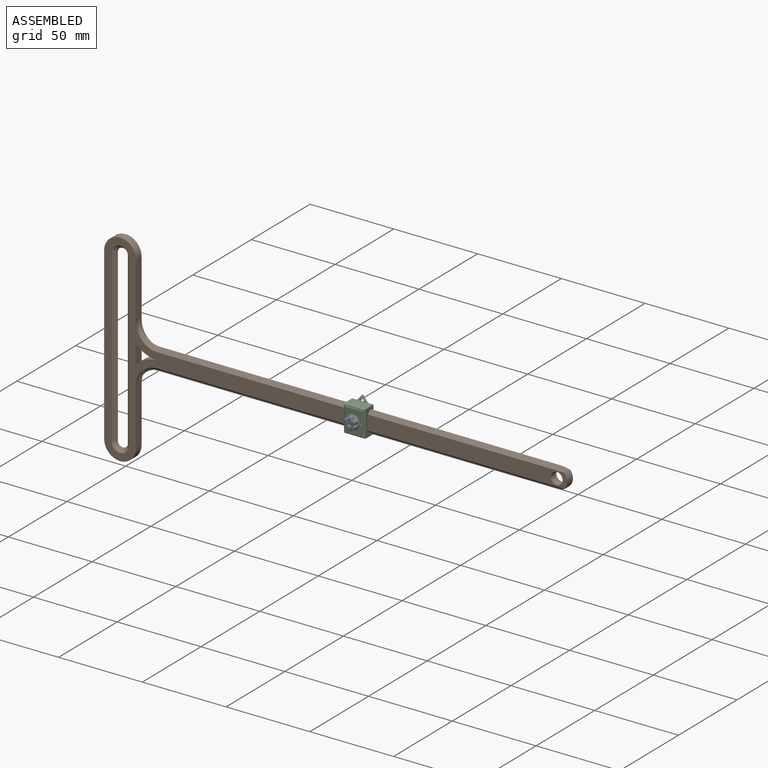
[diagram: assembled view]
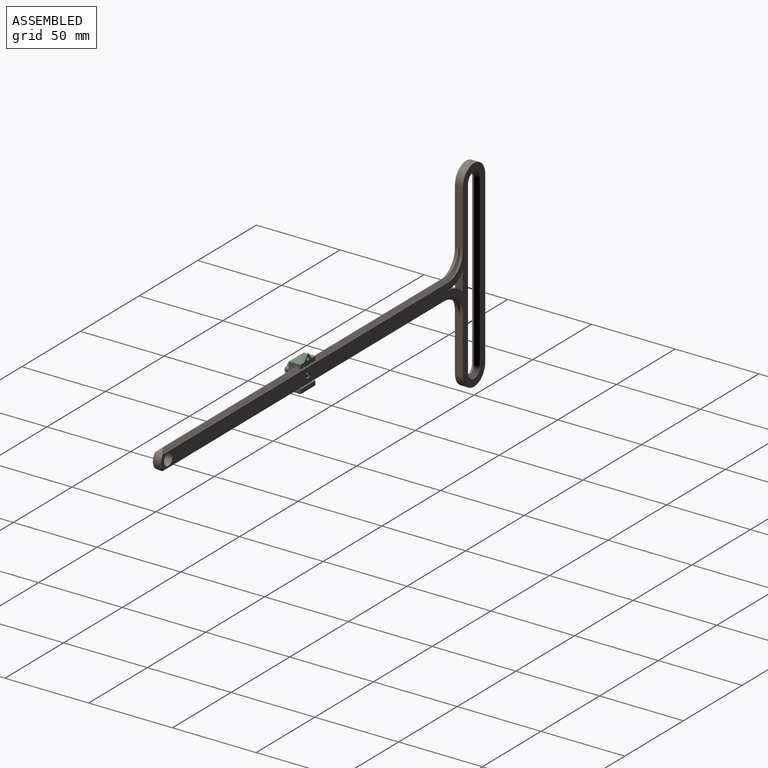
[diagram: assembled view, second angle]
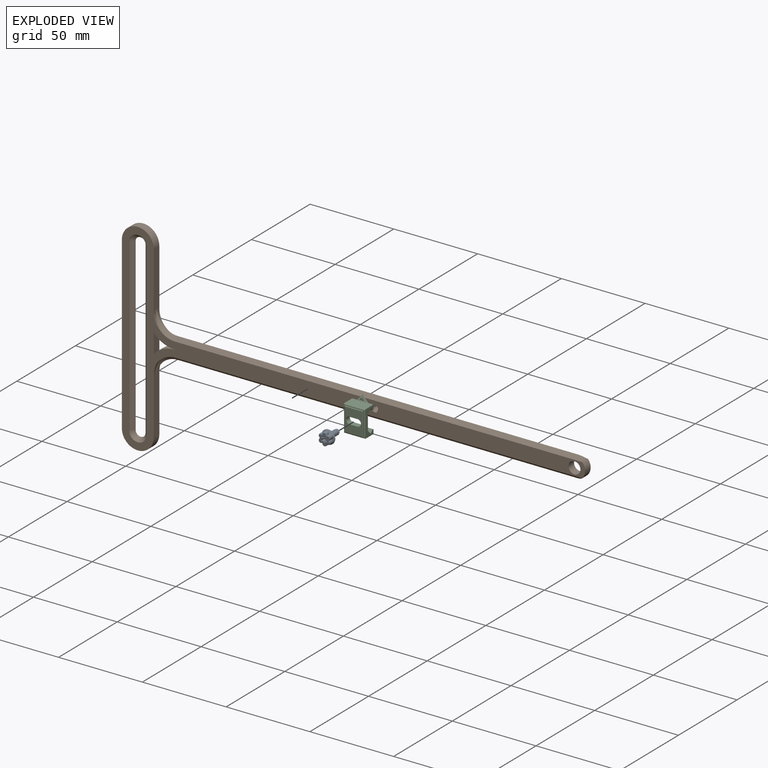
[diagram: exploded view]
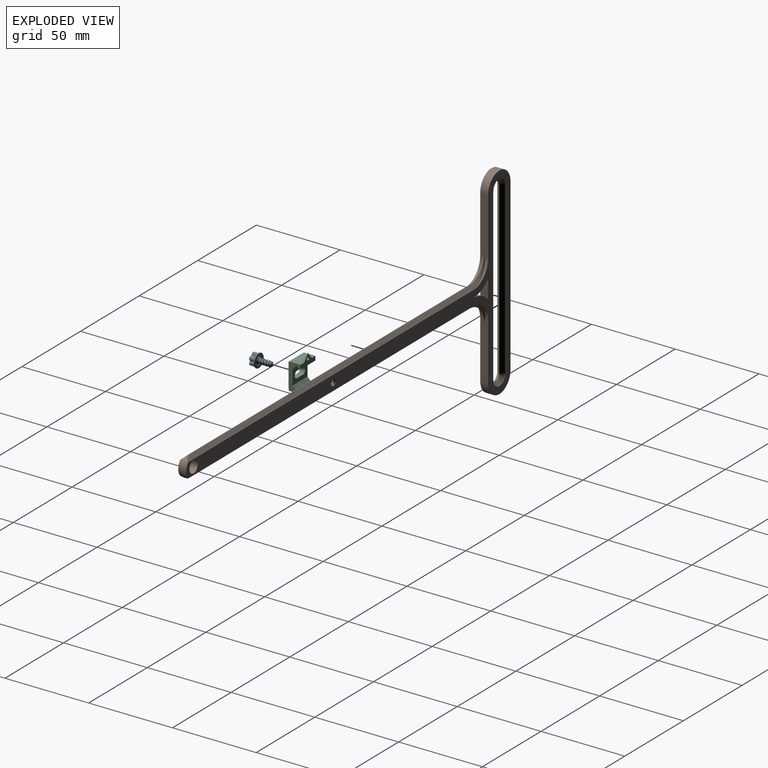
[diagram: exploded view, second angle]
ASSEMBLY  parts=3 mates=2
PART A: 109 faces, bbox 8.4x12.1x8.4 mm
  f0: bspline ~5.09x2.55mm, area 4.1mm2, adj f1,f2,f3,f4
  f1: plane 7.82x7.81mm, normal (0,-1,0), area 25.2mm2, adj f0,f2,f5,f6
  f2: bspline ~5.09x2.55mm, area 4.1mm2, adj f0,f1,f3,f4
  f3: bspline ~4.73x4.29mm, area 5.4mm2, adj f0,f2,f4,f7
  f4: bspline ~4.74x4.29mm, area 6.2mm2, adj f0,f2,f3,f7,f8,f9,f10,f11
  f5: bspline ~8.13x4.06mm, area 4.4mm2, adj f1,f6,f12
  f6: bspline ~8.13x4.06mm, area 4.4mm2, adj f1,f5,f13
  f7: bspline ~8.24x3.79mm, area 25.5mm2, adj f3,f4,f8,f10,f11,f14,f15,f16
  f8: cylinder r=1.71mm len=3.42mm, axis (0,-1,0), area 0.3mm2, adj f4,f7,f9,f20
  f9: bspline ~7.36x3.42mm, area 25.6mm2, adj f4,f8,f10,f14,f15,f16,f17,f18
  f10: cylinder r=1.27mm len=2.54mm, axis (0,-1,0), area 2.6mm2, adj f4,f7,f9,f11,f21
  f11: cylinder r=1.27mm len=2.29mm, axis (0,-1,0), area 1mm2, adj f4,f7,f10
  f12: cylinder r=4.06mm len=8.13mm, axis (0,1,0), area 3.2mm2, adj f5,f13,f32
  f13: cylinder r=4.06mm len=8.13mm, axis (0,1,0), area 3.2mm2, adj f6,f12,f33
  f14: cylinder r=1.71mm len=3.42mm, axis (0,-1,0), area 0.3mm2, adj f7,f9,f15,f30
  f15: cylinder r=1.71mm len=3.42mm, axis (0,-1,0), area 0.3mm2, adj f7,f9,f14,f16
  f16: cylinder r=1.71mm len=3.42mm, axis (0,-1,0), area 0.3mm2, adj f7,f9,f15,f17
  f17: cylinder r=1.71mm len=3.42mm, axis (0,-1,0), area 0.3mm2, adj f7,f9,f16,f18
  f18: cylinder r=1.71mm len=3.42mm, axis (0,-1,0), area 0.3mm2, adj f7,f9,f17,f19
  f19: cylinder r=1.71mm len=3.42mm, axis (0,-1,0), area 0.3mm2, adj f7,f9,f18,f20
  f20: cylinder r=1.71mm len=3.42mm, axis (0,-1,0), area 0.3mm2, adj f7,f8,f9,f19
  f21: cylinder r=1.27mm len=2.54mm, axis (0,-1,0), area 2.6mm2, adj f7,f9,f10,f22
  f22: cylinder r=1.27mm len=2.54mm, axis (0,-1,0), area 2.6mm2, adj f7,f9,f21,f23
  f23: cylinder r=1.27mm len=2.54mm, axis (0,-1,0), area 2.6mm2, adj f7,f9,f22,f24
  f24: cylinder r=1.27mm len=2.54mm, axis (0,-1,0), area 2.6mm2, adj f7,f9,f23,f25
  f25: cylinder r=1.27mm len=2.54mm, axis (0,-1,0), area 2.6mm2, adj f7,f9,f24,f26
  f26: cylinder r=1.27mm len=2.54mm, axis (0,-1,0), area 2.6mm2, adj f7,f9,f25,f27
  f27: cylinder r=1.27mm len=2.54mm, axis (0,-1,0), area 2.6mm2, adj f7,f9,f26,f29,f31
  f28: bspline ~3.63x2.41mm, area 3.6mm2, adj f7,f29,f34
  f29: bspline ~3.74x2.49mm, area 2.9mm2, adj f7,f9,f27,f28,f30,f31,f34
  f30: cylinder r=1.71mm len=3.14mm, axis (0,-1,0), area 0.3mm2, adj f7,f9,f14,f29
  f31: cylinder r=1.27mm len=2.12mm, axis (0,-1,0), area 0.9mm2, adj f9,f27,f29
  f32: bspline ~8.13x4.06mm, area 10mm2, adj f12,f33,f35,f36,f37,f38,f39,f40
  f33: bspline ~8.13x4.06mm, area 10mm2, adj f13,f32,f35,f41,f42,f43,f44,f45
  f34: plane 1.52x1.52mm, normal (0,-1,0), area 1.7mm2, adj f28,f29
  f35: cylinder r=0.19mm len=1.71mm, axis (0,1,0), area 0.6mm2, adj f32,f33,f36,f46,f47
  f36: cylinder r=1.31mm len=2.63mm, axis (0,1,0), area 9.2mm2, adj f32,f35,f37,f48
  f37: cylinder r=0.19mm len=1.71mm, axis (0,1,0), area 0.6mm2, adj f32,f36,f38,f49
  f38: cylinder r=1.31mm len=2.63mm, axis (0,1,0), area 9.2mm2, adj f32,f37,f39,f50
  f39: cylinder r=0.19mm len=1.71mm, axis (0,1,0), area 0.6mm2, adj f32,f38,f40,f51
  f40: cylinder r=1.31mm len=2.63mm, axis (0,1,0), area 9.2mm2, adj f32,f39,f41,f52
  f41: cylinder r=0.19mm len=1.71mm, axis (0,1,0), area 0.6mm2, adj f32,f33,f40,f42,f53
  f42: cylinder r=1.31mm len=2.63mm, axis (0,1,0), area 9.2mm2, adj f33,f41,f43,f54
  f43: cylinder r=0.19mm len=1.71mm, axis (0,1,0), area 0.6mm2, adj f33,f42,f44,f55
  f44: cylinder r=1.31mm len=2.63mm, axis (0,1,0), area 9.2mm2, adj f33,f43,f45,f56
  f45: cylinder r=0.19mm len=1.71mm, axis (0,1,0), area 0.6mm2, adj f33,f44,f46,f57
  f46: cylinder r=1.31mm len=2.63mm, axis (0,1,0), area 9.2mm2, adj f33,f35,f45,f58
  f47: bspline ~1.17x0.59mm, area 0.6mm2, adj f35,f48,f58,f59
  f48: bspline ~2.82x2.34mm, area 2.7mm2, adj f36,f47,f49,f59
  f49: bspline ~1.01x0.78mm, area 0.6mm2, adj f37,f48,f50,f59
  f50: bspline ~2.61x1.26mm, area 2.7mm2, adj f38,f49,f51,f59
  f51: bspline ~1.01x0.78mm, area 0.6mm2, adj f39,f50,f52,f59
  f52: bspline ~2.82x2.34mm, area 2.7mm2, adj f40,f51,f53,f59
  f53: bspline ~1.17x0.59mm, area 0.6mm2, adj f41,f52,f54,f59
  f54: bspline ~2.82x2.34mm, area 2.7mm2, adj f42,f53,f55,f59
  f55: bspline ~1.01x0.78mm, area 0.6mm2, adj f43,f54,f56,f59
  f56: bspline ~2.61x1.26mm, area 2.7mm2, adj f44,f55,f57,f59
  f57: bspline ~1.01x0.78mm, area 0.6mm2, adj f45,f56,f58,f59
  f58: bspline ~2.82x2.34mm, area 2.7mm2, adj f46,f47,f57,f59
  f59: plane 6.65x5.98mm, normal (0,1,0), area 17.7mm2, adj f47,f48,f49,f50,f51,f52,f53,f54
  f60: plane 1.5x0.56mm, normal (0.87,0,-0.5), area 1mm2, adj f59,f61,f83,f84
  f61: cylinder r=0.25mm len=1.5mm, axis (0,-1,0), area 0.4mm2, adj f59,f60,f62,f85
  f62: plane 1.5x0.65mm, normal (0,0,-1), area 1mm2, adj f59,f61,f63,f86
  f63: cylinder r=0.25mm len=1.5mm, axis (0,-1,0), area 0.8mm2, adj f59,f62,f64,f87
  f64: plane 1.5x0.56mm, normal (0.87,0,0.5), area 1mm2, adj f59,f63,f65,f88
  f65: cylinder r=0.25mm len=1.5mm, axis (0,-1,0), area 0.4mm2, adj f59,f64,f66,f89
  f66: plane 1.5x0.56mm, normal (0.87,0,-0.5), area 1mm2, adj f59,f65,f67,f90
  f67: cylinder r=0.25mm len=1.5mm, axis (0,-1,0), area 0.8mm2, adj f59,f66,f68,f91
  f68: plane 1.5x0.65mm, normal (0,0,1), area 1mm2, adj f59,f67,f69,f92
  f69: cylinder r=0.25mm len=1.5mm, axis (0,-1,0), area 0.4mm2, adj f59,f68,f70,f93
  f70: plane 1.5x0.56mm, normal (0.87,0,0.5), area 1mm2, adj f59,f69,f71,f94
  f71: cylinder r=0.25mm len=1.5mm, axis (0,-1,0), area 0.8mm2, adj f59,f70,f72,f95
  f72: plane 1.5x0.56mm, normal (-0.87,0,0.5), area 1mm2, adj f59,f71,f73,f96
  f73: cylinder r=0.25mm len=1.5mm, axis (0,-1,0), area 0.4mm2, adj f59,f72,f74,f97
  f74: plane 1.5x0.65mm, normal (0,0,1), area 1mm2, adj f59,f73,f75,f98
  f75: cylinder r=0.25mm len=1.5mm, axis (0,-1,0), area 0.8mm2, adj f59,f74,f76,f99
  f76: plane 1.5x0.56mm, normal (-0.87,0,-0.5), area 1mm2, adj f59,f75,f77,f100
  f77: cylinder r=0.25mm len=1.5mm, axis (0,-1,0), area 0.4mm2, adj f59,f76,f78,f101
  f78: plane 1.5x0.56mm, normal (-0.87,0,0.5), area 1mm2, adj f59,f77,f79,f102
  f79: cylinder r=0.25mm len=1.5mm, axis (0,-1,0), area 0.8mm2, adj f59,f78,f80,f103
  f80: plane 1.5x0.65mm, normal (0,0,-1), area 1mm2, adj f59,f79,f81,f104
  f81: cylinder r=0.25mm len=1.5mm, axis (0,-1,0), area 0.4mm2, adj f59,f80,f82,f105
  f82: plane 1.5x0.56mm, normal (-0.87,0,-0.5), area 1mm2, adj f59,f81,f83,f106
  f83: cylinder r=0.25mm len=1.5mm, axis (0,-1,0), area 0.8mm2, adj f59,f60,f82,f107
  f84: plane 0.69x0.54mm, normal (0.61,0.71,-0.35), area 0.2mm2, adj f60,f85,f107,f108
  f85: bspline ~0.44x0.38mm, area 0.1mm2, adj f61,f84,f86,f108
  f86: plane 0.9x0.51mm, normal (0,0.71,-0.71), area 0.2mm2, adj f62,f85,f87,f108
  f87: bspline ~0.38x0.29mm, area 0.1mm2, adj f63,f86,f88
  f88: plane 0.69x0.54mm, normal (0.61,0.71,0.35), area 0.2mm2, adj f64,f87,f89,f108
  f89: bspline ~0.51x0.37mm, area 0.1mm2, adj f65,f88,f90,f108
  f90: plane 0.94x0.8mm, normal (0.61,0.71,-0.35), area 0.2mm2, adj f66,f89,f91,f108
  f91: bspline ~0.38x0.29mm, area 0.1mm2, adj f67,f90,f92
  f92: plane 0.65x0.25mm, normal (0,0.71,0.71), area 0.2mm2, adj f68,f91,f93,f108
  f93: bspline ~0.44x0.38mm, area 0.1mm2, adj f69,f92,f94,f108
  f94: plane 0.94x0.8mm, normal (0.61,0.71,0.35), area 0.2mm2, adj f70,f93,f95,f108
  f95: bspline ~0.44x0.25mm, area 0.1mm2, adj f71,f94,f96
  f96: plane 0.69x0.54mm, normal (-0.61,0.71,0.35), area 0.2mm2, adj f72,f95,f97,f108
  f97: bspline ~0.44x0.38mm, area 0.1mm2, adj f73,f96,f98,f108
  f98: plane 0.9x0.51mm, normal (0,0.71,0.71), area 0.2mm2, adj f74,f97,f99,f108
  f99: bspline ~0.38x0.29mm, area 0.1mm2, adj f75,f98,f100
  f100: plane 0.69x0.54mm, normal (-0.61,0.71,-0.35), area 0.2mm2, adj f76,f99,f101,f108
  f101: bspline ~0.51x0.37mm, area 0.1mm2, adj f77,f100,f102,f108
  f102: plane 0.94x0.8mm, normal (-0.61,0.71,0.35), area 0.2mm2, adj f78,f101,f103,f108
  f103: bspline ~0.38x0.29mm, area 0.1mm2, adj f79,f102,f104
  f104: plane 0.65x0.25mm, normal (0,0.71,-0.71), area 0.2mm2, adj f80,f103,f105,f108
  f105: bspline ~0.44x0.38mm, area 0.1mm2, adj f81,f104,f106,f108
  f106: plane 0.94x0.8mm, normal (-0.61,0.71,-0.35), area 0.2mm2, adj f82,f105,f107,f108
  f107: bspline ~0.44x0.25mm, area 0.1mm2, adj f83,f84,f106
  f108: plane 3.26x2.82mm, normal (0,1,0), area 4.7mm2, adj f84,f85,f86,f88,f89,f90,f92,f93
PART B: 73 faces, bbox 276.7x5.5x120.9 mm
  f0: cylinder r=1.4mm len=2.79mm, axis (0,-1,0), area 0.8mm2, adj f1,f2,f3,f4
  f1: cylinder r=1.4mm len=2.79mm, axis (0,-1,0), area 0.8mm2, adj f0,f2,f4,f5
  f2: bspline ~4.97x4mm, area 16.4mm2, adj f0,f1,f3,f5,f6,f7,f8,f9
  f3: cylinder r=1.4mm len=1.34mm, axis (0,-1,0), area 0.2mm2, adj f0,f2,f4,f6
  f4: bspline ~4.97x4.01mm, area 16.4mm2, adj f0,f1,f3,f5,f6,f7,f8,f9
  f5: cylinder r=1.4mm len=2.79mm, axis (0,-1,0), area 0.8mm2, adj f1,f2,f4,f7
  f6: bspline ~3.6x3.01mm, area 3.4mm2, adj f2,f3,f4,f18,f20
  f7: cylinder r=1.4mm len=2.79mm, axis (0,-1,0), area 0.8mm2, adj f2,f4,f5,f8
  f8: cylinder r=1.4mm len=1.34mm, axis (0,-1,0), area 0.2mm2, adj f2,f4,f7,f9
  f9: bspline ~4.35x3.78mm, area 3.4mm2, adj f2,f4,f8,f10,f21
  f10: bspline ~4.35x3.77mm, area 1.2mm2, adj f2,f9,f11,f19,f21
  f11: cylinder r=1.84mm len=3.67mm, axis (0,-1,0), area 2.5mm2, adj f2,f4,f10,f12,f19
  f12: cylinder r=1.84mm len=3.67mm, axis (0,-1,0), area 3mm2, adj f2,f4,f11,f13
  f13: cylinder r=1.84mm len=3.67mm, axis (0,-1,0), area 3.1mm2, adj f2,f4,f12,f14
  f14: cylinder r=1.84mm len=3.67mm, axis (0,-1,0), area 3.1mm2, adj f2,f4,f13,f15
  f15: cylinder r=1.84mm len=3.67mm, axis (0,-1,0), area 3.1mm2, adj f2,f4,f14,f16
  f16: cylinder r=1.84mm len=3.67mm, axis (0,-1,0), area 2.5mm2, adj f2,f4,f15,f17,f18
  f17: cylinder r=1.84mm len=0.99mm, axis (0,-1,0), area 0.1mm2, adj f2,f16,f18
  f18: bspline ~4.35x3.77mm, area 1.2mm2, adj f4,f6,f16,f17,f20
  f19: cylinder r=1.84mm len=1mm, axis (0,-1,0), area 0.1mm2, adj f4,f10,f11
  f20: plane 276.65x120.83mm, normal (0,-1,0), area 3297.8mm2, adj f6,f18,f22,f23,f24,f25,f26,f27
  f21: plane 276.65x120.83mm, normal (0,1,0), area 3297.8mm2, adj f9,f10,f23,f26,f27,f28,f29,f30
  f22: plane 243.07x0.25mm, normal (0,0,-1), area 61.7mm2, adj f20,f23,f31,f49
  f23: cylinder r=6.35mm len=12.7mm, axis (0,-1,0), area 62.4mm2, adj f20,f21,f22,f24,f41,f42,f49,f50
  f24: plane 243.07x0.25mm, normal (0,0,1), area 61.7mm2, adj f20,f23,f25,f53
  f25: cylinder r=12.7mm len=12.7mm, axis (0,-1,0), area 18.1mm2, adj f20,f24,f26,f55
  f26: plane 33.87x4.88mm, normal (1,0,0), area 160mm2, adj f20,f21,f25,f27,f44,f55,f56,f57
  f27: cylinder r=9.53mm len=19.05mm, axis (0,-1,0), area 142.5mm2, adj f20,f21,f26,f28
  f28: plane 101.6x4.76mm, normal (-1,0,0), area 483.9mm2, adj f20,f21,f27,f29
  f29: cylinder r=9.53mm len=19.05mm, axis (0,-1,0), area 142.5mm2, adj f20,f21,f28,f30
  f30: plane 33.87x4.88mm, normal (1,0,0), area 160mm2, adj f20,f21,f29,f31,f43,f58,f59,f60
  f31: cylinder r=12.7mm len=12.7mm, axis (0,-1,0), area 18.1mm2, adj f20,f22,f30,f60
  f32: cylinder r=5.16mm len=10.31mm, axis (0,1,0), area 2.9mm2, adj f20,f33,f35,f61
  f33: plane 101.6x0.18mm, normal (1,0,0), area 18.1mm2, adj f20,f32,f34,f62
  f34: cylinder r=5.16mm len=10.31mm, axis (0,1,0), area 2.9mm2, adj f20,f33,f35,f63
  f35: plane 101.6x0.18mm, normal (-1,0,0), area 18.1mm2, adj f20,f32,f34,f64
  f36: cylinder r=17.05mm len=12.7mm, axis (0,-1,0), area 68.2mm2, adj f20,f21,f37,f38
  f37: cylinder r=17.05mm len=12.7mm, axis (0,-1,0), area 68.2mm2, adj f20,f21,f36,f38
  f38: plane 11.35x4.76mm, normal (1,0,0), area 54mm2, adj f20,f21,f36,f37
  f39: cylinder r=3.56mm len=7.11mm, axis (0,-1,0), area 53.2mm2, adj f20,f21,f40
  f40: cylinder r=3.56mm len=7.11mm, axis (0,-1,0), area 53.2mm2, adj f20,f21,f39
  f41: plane 243.07x0.25mm, normal (0,0,1), area 61.7mm2, adj f21,f23,f44,f51
  f42: plane 243.07x0.25mm, normal (0,0,-1), area 61.7mm2, adj f21,f23,f43,f50
  f43: cylinder r=12.7mm len=12.7mm, axis (0,-1,0), area 18.1mm2, adj f21,f30,f42,f58
  f44: cylinder r=12.7mm len=12.7mm, axis (0,-1,0), area 18.1mm2, adj f21,f26,f41,f57
  f45: plane 101.6x0.18mm, normal (1,0,0), area 18.1mm2, adj f21,f46,f48,f65
  f46: cylinder r=5.16mm len=10.31mm, axis (0,1,0), area 2.9mm2, adj f21,f45,f47,f66
  f47: plane 101.6x0.18mm, normal (-1,0,0), area 18.1mm2, adj f21,f46,f48,f67
  f48: cylinder r=5.16mm len=10.31mm, axis (0,1,0), area 2.9mm2, adj f21,f45,f47,f68
  f49: plane 243.07x2mm, normal (0,-0.71,-0.71), area 683.5mm2, adj f22,f23,f54,f60
  f50: plane 243.07x2mm, normal (0,0.71,-0.71), area 683.5mm2, adj f23,f42,f54,f58
  f51: plane 243.07x2mm, normal (0,0.71,0.71), area 683.5mm2, adj f23,f41,f52,f57
  f52: plane 238.44x0.25mm, normal (0,0,1), area 60.6mm2, adj f23,f51,f53,f56
  f53: plane 243.07x2mm, normal (0,-0.71,0.71), area 683.5mm2, adj f23,f24,f52,f55
  f54: plane 238.44x0.25mm, normal (0,0,-1), area 60.6mm2, adj f23,f49,f50,f59
  f55: bspline ~14.7x14.7mm, area 28.8mm2, adj f25,f26,f53,f56
  f56: cylinder r=12.7mm len=12.7mm, axis (0,-1,0), area 5.1mm2, adj f26,f52,f55,f57
  f57: bspline ~14.7x14.7mm, area 28.8mm2, adj f26,f44,f51,f56
  f58: bspline ~14.7x14.7mm, area 28.8mm2, adj f30,f43,f50,f59
  f59: cylinder r=12.7mm len=12.7mm, axis (0,1,0), area 5.1mm2, adj f30,f54,f58,f60
  f60: bspline ~14.7x14.7mm, area 28.8mm2, adj f30,f31,f49,f59
  f61: bspline ~10.31x5.16mm, area 38mm2, adj f32,f62,f64,f69
  f62: plane 101.6x2.08mm, normal (0.71,-0.71,0), area 298.4mm2, adj f33,f61,f63,f70
  f63: bspline ~10.31x5.16mm, area 38mm2, adj f34,f62,f64,f71
  f64: plane 101.6x2.08mm, normal (-0.71,-0.71,0), area 298.4mm2, adj f35,f61,f63,f72
  f65: plane 101.6x2.08mm, normal (0.71,0.71,0), area 298.4mm2, adj f45,f66,f68,f70
  f66: bspline ~10.31x5.16mm, area 38mm2, adj f46,f65,f67,f69
  f67: plane 101.6x2.08mm, normal (-0.71,0.71,0), area 298.4mm2, adj f47,f66,f68,f72
  f68: bspline ~10.31x5.16mm, area 38mm2, adj f48,f65,f67,f71
  f69: cylinder r=3.08mm len=6.16mm, axis (0,1,0), area 2.5mm2, adj f61,f66,f70,f72
  f70: plane 101.6x0.25mm, normal (1,0,0), area 25.8mm2, adj f62,f65,f69,f71
  f71: cylinder r=3.08mm len=6.16mm, axis (0,1,0), area 2.5mm2, adj f63,f68,f70,f72
  f72: plane 101.6x0.25mm, normal (-1,0,0), area 25.8mm2, adj f64,f67,f69,f71
PART C: 37 faces, bbox 13.5x8.7x20.6 mm
  f0: cylinder r=0.4mm len=10.82mm, axis (-1,0,0), area 10.6mm2, adj f1,f2,f3,f4
  f1: cylinder r=0.6mm len=12.7mm, axis (-1,0,0), area 15.3mm2, adj f0,f5,f6,f7
  f2: cylinder r=0.4mm len=14mm, axis (0,0,-1), area 13.8mm2, adj f0,f3,f5,f8
  f3: plane 13.54x10.36mm, normal (0,-1,0), area 107.9mm2, adj f0,f2,f4,f8,f9,f10,f11,f12
  f4: cylinder r=0.4mm len=14mm, axis (0,0,1), area 13.8mm2, adj f0,f3,f6,f8
  f5: cylinder r=0.6mm len=15.88mm, axis (0,0,-1), area 19.5mm2, adj f1,f2,f13,f14
  f6: cylinder r=0.6mm len=15.88mm, axis (0,0,1), area 19.5mm2, adj f1,f4,f13,f15
  f7: plane 12.7x6.73mm, normal (0,0,1), area 85.5mm2, adj f1,f14,f15,f16
  f8: cylinder r=0.4mm len=10.82mm, axis (1,0,0), area 10.6mm2, adj f2,f3,f4,f13
  f9: plane 4.76x3.18mm, normal (0,0,1), area 15.1mm2, adj f3,f10,f12,f17
  f10: cylinder r=2.03mm len=4.06mm, axis (0,-1,0), area 20.3mm2, adj f3,f9,f11,f17
  f11: plane 4.76x3.18mm, normal (0,0,-1), area 15.1mm2, adj f3,f10,f12,f17
  f12: cylinder r=2.03mm len=4.06mm, axis (0,-1,0), area 20.3mm2, adj f3,f9,f11,f17
  f13: cylinder r=0.6mm len=12.7mm, axis (1,0,0), area 15.3mm2, adj f5,f6,f8,f18
  f14: plane 15.88x6.73mm, normal (-1,0,0), area 52.6mm2, adj f5,f7,f16,f17,f18,f19,f20,f21
  f15: plane 15.88x6.73mm, normal (1,0,0), area 52.6mm2, adj f6,f7,f16,f17,f18,f19,f20,f21
  f16: plane 12.7x2.27mm, normal (0,1,0), area 28.8mm2, adj f7,f14,f15,f19
  f17: plane 12.7x8.89mm, normal (0,1,0), area 80.6mm2, adj f9,f10,f11,f12,f14,f15,f22,f23
  f18: plane 12.7x6.73mm, normal (0,0,-1), area 65.4mm2, adj f13,f14,f15,f27,f28,f29,f30,f31
  f19: cylinder r=0.51mm len=12.7mm, axis (1,0,0), area 15.2mm2, adj f14,f15,f16,f20
  f20: plane 12.7x1.29mm, normal (0,-0.71,-0.71), area 23.2mm2, adj f14,f15,f19,f21
  f21: plane 12.7x0.44mm, normal (0,0,-1), area 5.6mm2, adj f14,f15,f20,f22
  f22: plane 12.7x2.16mm, normal (0,0.71,-0.71), area 38.8mm2, adj f14,f15,f17,f21
  f23: plane 12.7x2.16mm, normal (0,0.71,0.71), area 38.8mm2, adj f14,f15,f17,f24
  f24: plane 12.7x0.44mm, normal (0,0,1), area 5.6mm2, adj f14,f15,f23,f25
  f25: plane 12.7x1.29mm, normal (0,-0.71,0.71), area 23.2mm2, adj f14,f15,f24,f26
  f26: cylinder r=0.51mm len=12.7mm, axis (1,0,0), area 15.2mm2, adj f14,f15,f25,f27
  f27: plane 12.7x6.24mm, normal (0,1,0), area 38.3mm2, adj f14,f15,f18,f26,f28,f31,f32,f33
  f28: cylinder r=1.52mm len=2.57mm, axis (0,-1,0), area 2.7mm2, adj f18,f27,f29,f33
  f29: cylinder r=1.52mm len=3.91mm, axis (1,0,0), area 4.8mm2, adj f18,f28,f33,f34,f36
  f30: cylinder r=1.52mm len=3.91mm, axis (1,0,0), area 4.8mm2, adj f18,f31,f32,f34,f36
  f31: cylinder r=1.52mm len=2.57mm, axis (0,1,0), area 2.7mm2, adj f18,f27,f30,f32
  f32: plane 3.41x2.73mm, normal (0.78,0,-0.62), area 2.8mm2, adj f27,f30,f31,f36
  f33: plane 3.41x2.73mm, normal (-0.78,0,-0.62), area 2.8mm2, adj f27,f28,f29,f36
  f34: cylinder r=1.02mm len=2.57mm, axis (0,-1,0), area 5.5mm2, adj f27,f29,f30,f35,f36
  f35: cylinder r=1.02mm len=2.03mm, axis (0,-1,0), area 3.6mm2, adj f27,f34,f36
  f36: plane 5.57x3.78mm, normal (0,-0.93,-0.36), area 5.8mm2, adj f29,f30,f32,f33,f34,f35
PLACE A rot(axis=(0,0,1),180deg) t=(141.6,-7.94,0)mm
PLACE B at identity fixed
PLACE C rot(axis=(0,1,0),180deg) t=(141.6,-4.76,0)mm
MATE fastened C.f3 <-> A.f12  axis (0,-1,0) through (141.6,-7.94,0)mm
MATE fastened C.f17 <-> B.f1  axis (0,1,0) through (141.6,-4.76,0)mm
